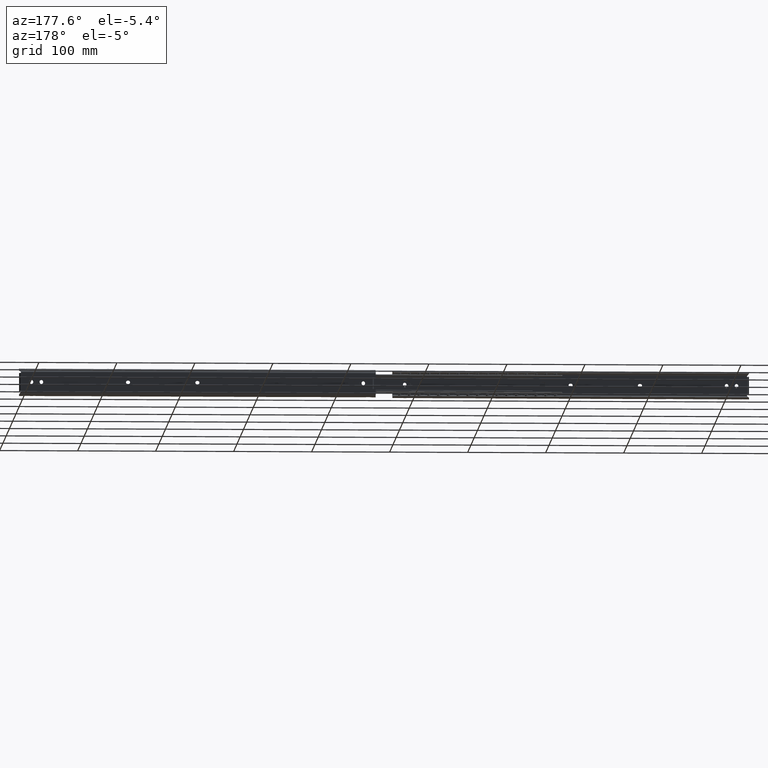
[diagram: clean part render]
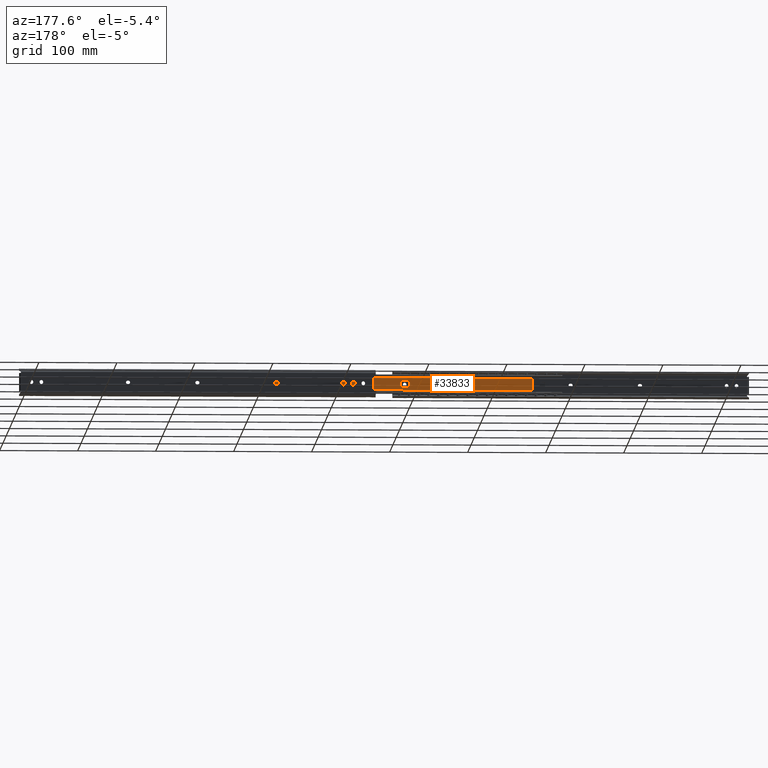
[diagram: same view with one face highlighted and labeled with its STEP entity id]
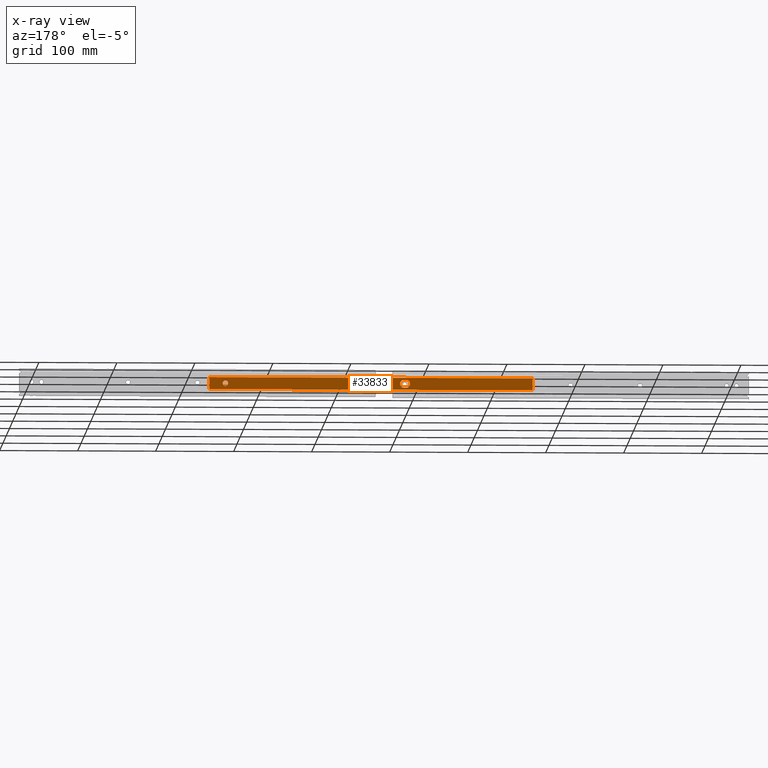
[diagram: x-ray of the same camera — body ghosted, the highlighted face saturated]
A machine part, auxiliary view. The second image highlights one B-rep face of the part: STEP entity #33833.
The next image is the same camera in x-ray: the body ghosted, the highlighted face saturated — about 0% of this face is hidden behind the body in this view.
In plain terms, the highlighted face is a freeform B-spline surface patch.
Its self-contained STEP definition (entity closure, byte-faithful):
#32329=CARTESIAN_POINT('',(-261.124466657732630,-7.100000000000000,-0.413119821344282));
#32330=VERTEX_POINT('',#32329);
#32331=CARTESIAN_POINT('',(-264.600000000000020,-7.100000000000001,3.500000000000000));
#32332=VERTEX_POINT('',#32331);
#32333=CARTESIAN_POINT('',(-261.124466657732570,-7.100000000000000,-0.413119821344282));
#32334=CARTESIAN_POINT('',(-261.100000000000080,-7.100000000000001,-0.207284418827796));
#32335=CARTESIAN_POINT('',(-261.100000000000020,-7.100000000000001,0.0));
#32336=CARTESIAN_POINT('',(-261.100000000000080,-7.100000000000001,3.500000000000000));
#32337=CARTESIAN_POINT('',(-264.600000000000020,-7.100000000000001,3.500000000000000));
#32345=(BOUNDED_CURVE()B_SPLINE_CURVE(2,(#32333,#32334,#32335,#32336,#32337),.UNSPECIFIED.,.F.,.U.)B_SPLINE_CURVE_WITH_KNOTS((3,2,3),(0.229562473511207,0.250000000000000,0.500000000000000),.UNSPECIFIED.)CURVE()GEOMETRIC_REPRESENTATION_ITEM()RATIONAL_B_SPLINE_CURVE((0.956026754179188,0.976055948328449,1.0,0.707106781186547,1.0))REPRESENTATION_ITEM(''));
#32346=EDGE_CURVE('',#32330,#32332,#32345,.T.);
#32387=CARTESIAN_POINT('',(-268.093471794417720,-7.100000000000001,0.213669889333308));
#32388=VERTEX_POINT('',#32387);
#32394=CARTESIAN_POINT('',(-264.600000000000020,-7.100000000000001,3.500000000000000));
#32395=CARTESIAN_POINT('',(-267.892471232354520,-7.099999999999999,3.500000000000000));
#32396=CARTESIAN_POINT('',(-268.093471794417720,-7.100000000000001,0.213669889333308));
#32404=(BOUNDED_CURVE()B_SPLINE_CURVE(2,(#32394,#32395,#32396),.UNSPECIFIED.,.F.,.U.)B_SPLINE_CURVE_WITH_KNOTS((3,3),(0.500000000000000,0.739332962147008),.UNSPECIFIED.)CURVE()GEOMETRIC_REPRESENTATION_ITEM()RATIONAL_B_SPLINE_CURVE((1.0,0.719603993394419,0.976072041469683))REPRESENTATION_ITEM(''));
#32405=EDGE_CURVE('',#32332,#32388,#32404,.T.);
#32428=CARTESIAN_POINT('',(-264.600000000000020,-7.100000000000001,-3.500000000000000));
#32429=VERTEX_POINT('',#32428);
#32430=CARTESIAN_POINT('',(-264.600000000000020,-7.100000000000001,-3.500000000000000));
#32431=CARTESIAN_POINT('',(-261.491389159252490,-7.100000000000001,-3.500000000000000));
#32432=CARTESIAN_POINT('',(-261.124466657732570,-7.100000000000000,-0.413119821344282));
#32440=(BOUNDED_CURVE()B_SPLINE_CURVE(2,(#32430,#32431,#32432),.UNSPECIFIED.,.F.,.U.)B_SPLINE_CURVE_WITH_KNOTS((3,3),(0.0,0.229562473511207),.UNSPECIFIED.)CURVE()GEOMETRIC_REPRESENTATION_ITEM()RATIONAL_B_SPLINE_CURVE((1.0,0.731050832858099,0.956026754179188))REPRESENTATION_ITEM(''));
#32441=EDGE_CURVE('',#32429,#32330,#32440,.T.);
#32443=CARTESIAN_POINT('',(-268.093471794417670,-7.100000000000001,0.213669889333308));
#32444=CARTESIAN_POINT('',(-268.100000000000020,-7.100000000000001,0.106934672509065));
#32445=CARTESIAN_POINT('',(-268.100000000000020,-7.100000000000001,0.0));
#32446=CARTESIAN_POINT('',(-268.100000000000020,-7.100000000000001,-3.500000000000000));
#32447=CARTESIAN_POINT('',(-264.600000000000020,-7.100000000000001,-3.500000000000000));
#32455=(BOUNDED_CURVE()B_SPLINE_CURVE(2,(#32443,#32444,#32445,#32446,#32447),.UNSPECIFIED.,.F.,.U.)B_SPLINE_CURVE_WITH_KNOTS((3,2,3),(0.739332962147008,0.750000000000000,1.0),.UNSPECIFIED.)CURVE()GEOMETRIC_REPRESENTATION_ITEM()RATIONAL_B_SPLINE_CURVE((0.976072041469684,0.987502787792129,1.0,0.707106781186547,1.0))REPRESENTATION_ITEM(''));
#32456=EDGE_CURVE('',#32388,#32429,#32455,.T.);
#33209=CARTESIAN_POINT('',(-243.800000000000010,-7.100000000000001,-7.687500000000000));
#33210=VERTEX_POINT('',#33209);
#33224=CARTESIAN_POINT('',(-243.800000000000010,-7.100000000000001,7.687499999999799));
#33225=VERTEX_POINT('',#33224);
#33226=CARTESIAN_POINT('',(-243.800000000000010,-7.100000000000001,7.687499999999799));
#33227=CARTESIAN_POINT('',(-243.800000000000010,-7.100000000000001,-7.687500000000000));
#33228=QUASI_UNIFORM_CURVE('',1,(#33226,#33227),.UNSPECIFIED.,.F.,.U.);
#33229=EDGE_CURVE('',#33225,#33210,#33228,.T.);
#33261=CARTESIAN_POINT('',(-439.600000000000020,-7.100000000000001,-5.0));
#33262=VERTEX_POINT('',#33261);
#33268=CARTESIAN_POINT('',(-442.600000000000020,-7.100000000000001,-5.0));
#33269=VERTEX_POINT('',#33268);
#33270=CARTESIAN_POINT('',(-442.600000000000020,-7.100000000000001,-5.0));
#33271=CARTESIAN_POINT('',(-439.600000000000020,-7.100000000000001,-5.0));
#33272=QUASI_UNIFORM_CURVE('',1,(#33270,#33271),.UNSPECIFIED.,.F.,.U.);
#33273=EDGE_CURVE('',#33269,#33262,#33272,.T.);
#33319=CARTESIAN_POINT('',(-442.600000000000020,-7.100000000000001,4.999999999999800));
#33320=VERTEX_POINT('',#33319);
#33321=CARTESIAN_POINT('',(-442.600000000000020,-7.100000000000001,5.0));
#33322=CARTESIAN_POINT('',(-447.600000000000020,-7.100000000000001,5.000000000000001));
#33323=CARTESIAN_POINT('',(-447.600000000000020,-7.100000000000001,0.0));
#33324=CARTESIAN_POINT('',(-447.600000000000020,-7.100000000000001,-5.000000000000001));
#33325=CARTESIAN_POINT('',(-442.600000000000020,-7.100000000000001,-5.0));
#33333=(BOUNDED_CURVE()B_SPLINE_CURVE(2,(#33321,#33322,#33323,#33324,#33325),.UNSPECIFIED.,.F.,.U.)B_SPLINE_CURVE_WITH_KNOTS((3,2,3),(0.0,0.500000000000000,1.0),.UNSPECIFIED.)CURVE()GEOMETRIC_REPRESENTATION_ITEM()RATIONAL_B_SPLINE_CURVE((1.0,0.707106781186548,1.0,0.707106781186548,1.0))REPRESENTATION_ITEM(''));
#33334=EDGE_CURVE('',#33320,#33269,#33333,.T.);
#33357=CARTESIAN_POINT('',(-439.600000000000020,-7.100000000000001,4.999999999999800));
#33358=VERTEX_POINT('',#33357);
#33359=CARTESIAN_POINT('',(-439.600000000000020,-7.100000000000001,4.999999999999800));
#33360=CARTESIAN_POINT('',(-442.600000000000020,-7.100000000000001,4.999999999999800));
#33361=QUASI_UNIFORM_CURVE('',1,(#33359,#33360),.UNSPECIFIED.,.F.,.U.);
#33362=EDGE_CURVE('',#33358,#33320,#33361,.T.);
#33406=CARTESIAN_POINT('',(-439.600000000000020,-7.100000000000001,-5.0));
#33407=CARTESIAN_POINT('',(-434.599999999999910,-7.100000000000001,-5.000000000000001));
#33408=CARTESIAN_POINT('',(-434.600000000000020,-7.100000000000001,0.0));
#33409=CARTESIAN_POINT('',(-434.599999999999910,-7.100000000000001,5.000000000000001));
#33410=CARTESIAN_POINT('',(-439.600000000000020,-7.100000000000001,5.0));
#33418=(BOUNDED_CURVE()B_SPLINE_CURVE(2,(#33406,#33407,#33408,#33409,#33410),.UNSPECIFIED.,.F.,.U.)B_SPLINE_CURVE_WITH_KNOTS((3,2,3),(0.0,0.500000000000000,1.0),.UNSPECIFIED.)CURVE()GEOMETRIC_REPRESENTATION_ITEM()RATIONAL_B_SPLINE_CURVE((1.0,0.707106781186548,1.0,0.707106781186548,1.0))REPRESENTATION_ITEM(''));
#33419=EDGE_CURVE('',#33262,#33358,#33418,.T.);
#33462=CARTESIAN_POINT('',(-493.399999999999980,-7.100000000000001,5.0));
#33463=VERTEX_POINT('',#33462);
#33469=CARTESIAN_POINT('',(-493.399999999999980,-7.100000000000001,-5.0));
#33470=VERTEX_POINT('',#33469);
#33471=CARTESIAN_POINT('',(-493.399999999999980,-7.100000000000001,-5.0));
#33472=CARTESIAN_POINT('',(-488.399999999999980,-7.100000000000001,-5.000000000000001));
#33473=CARTESIAN_POINT('',(-488.399999999999980,-7.100000000000001,0.0));
#33474=CARTESIAN_POINT('',(-488.399999999999980,-7.100000000000001,5.000000000000001));
#33475=CARTESIAN_POINT('',(-493.399999999999980,-7.100000000000001,5.0));
#33483=(BOUNDED_CURVE()B_SPLINE_CURVE(2,(#33471,#33472,#33473,#33474,#33475),.UNSPECIFIED.,.F.,.U.)B_SPLINE_CURVE_WITH_KNOTS((3,2,3),(0.0,0.500000000000000,1.0),.UNSPECIFIED.)CURVE()GEOMETRIC_REPRESENTATION_ITEM()RATIONAL_B_SPLINE_CURVE((1.0,0.707106781186548,1.0,0.707106781186548,1.0))REPRESENTATION_ITEM(''));
#33484=EDGE_CURVE('',#33470,#33463,#33483,.T.);
#33507=CARTESIAN_POINT('',(-496.399999999999980,-7.100000000000001,-5.0));
#33508=VERTEX_POINT('',#33507);
#33509=CARTESIAN_POINT('',(-496.399999999999980,-7.100000000000001,-5.0));
#33510=CARTESIAN_POINT('',(-493.399999999999980,-7.100000000000001,-5.0));
#33511=QUASI_UNIFORM_CURVE('',1,(#33509,#33510),.UNSPECIFIED.,.F.,.U.);
#33512=EDGE_CURVE('',#33508,#33470,#33511,.T.);
#33558=CARTESIAN_POINT('',(-496.399999999999980,-7.100000000000001,5.0));
#33559=VERTEX_POINT('',#33558);
#33560=CARTESIAN_POINT('',(-496.399999999999980,-7.100000000000001,5.0));
#33561=CARTESIAN_POINT('',(-501.400000000000090,-7.100000000000001,5.000000000000001));
#33562=CARTESIAN_POINT('',(-501.399999999999980,-7.100000000000001,0.0));
#33563=CARTESIAN_POINT('',(-501.400000000000090,-7.100000000000001,-5.000000000000001));
#33564=CARTESIAN_POINT('',(-496.399999999999980,-7.100000000000001,-5.0));
#33572=(BOUNDED_CURVE()B_SPLINE_CURVE(2,(#33560,#33561,#33562,#33563,#33564),.UNSPECIFIED.,.F.,.U.)B_SPLINE_CURVE_WITH_KNOTS((3,2,3),(0.0,0.500000000000000,1.0),.UNSPECIFIED.)CURVE()GEOMETRIC_REPRESENTATION_ITEM()RATIONAL_B_SPLINE_CURVE((1.0,0.707106781186548,1.0,0.707106781186548,1.0))REPRESENTATION_ITEM(''));
#33573=EDGE_CURVE('',#33559,#33508,#33572,.T.);
#33594=CARTESIAN_POINT('',(-493.399999999999980,-7.100000000000001,5.0));
#33595=CARTESIAN_POINT('',(-496.399999999999980,-7.100000000000001,5.0));
#33596=QUASI_UNIFORM_CURVE('',1,(#33594,#33595),.UNSPECIFIED.,.F.,.U.);
#33597=EDGE_CURVE('',#33463,#33559,#33596,.T.);
#33617=CARTESIAN_POINT('',(-658.399999999999980,-7.100000000000001,7.687499999999799));
#33618=VERTEX_POINT('',#33617);
#33632=CARTESIAN_POINT('',(-658.399999999999980,-7.100000000000001,-7.687500000000000));
#33633=VERTEX_POINT('',#33632);
#33634=CARTESIAN_POINT('',(-658.399999999999980,-7.100000000000001,-7.687500000000000));
#33635=CARTESIAN_POINT('',(-658.399999999999980,-7.100000000000001,7.687499999999799));
#33636=QUASI_UNIFORM_CURVE('',1,(#33634,#33635),.UNSPECIFIED.,.F.,.U.);
#33637=EDGE_CURVE('',#33633,#33618,#33636,.T.);
#33791=CARTESIAN_POINT('',(-243.800000000000010,-7.100000000000001,7.687499999999799));
#33792=CARTESIAN_POINT('',(-658.399999999999980,-7.100000000000001,7.687499999999799));
#33793=QUASI_UNIFORM_CURVE('',1,(#33791,#33792),.UNSPECIFIED.,.F.,.U.);
#33794=EDGE_CURVE('',#33225,#33618,#33793,.T.);
#33800=CARTESIAN_POINT('',(-679.109296440201890,-7.100000000000001,8.455481220200056));
#33801=CARTESIAN_POINT('',(-679.109296440201890,-7.100000000000001,-8.455481632589891));
#33802=CARTESIAN_POINT('',(-223.090718387049610,-7.100000000000001,8.455481220200056));
#33803=CARTESIAN_POINT('',(-223.090718387049610,-7.100000000000001,-8.455481632589891));
#33804=B_SPLINE_SURFACE_WITH_KNOTS('',1,1,((#33800,#33802),(#33801,#33803)),.UNSPECIFIED.,.F.,.F.,.U.,(2,2),(2,2),(0.0,16.910962852789950),(0.0,456.018578053152280),.UNSPECIFIED.);
#33805=ORIENTED_EDGE('',*,*,#33794,.F.);
#33806=ORIENTED_EDGE('',*,*,#33229,.T.);
#33807=CARTESIAN_POINT('',(-243.800000000000010,-7.100000000000001,-7.687500000000000));
#33808=CARTESIAN_POINT('',(-658.399999999999980,-7.100000000000001,-7.687500000000000));
#33809=QUASI_UNIFORM_CURVE('',1,(#33807,#33808),.UNSPECIFIED.,.F.,.U.);
#33810=EDGE_CURVE('',#33210,#33633,#33809,.T.);
#33811=ORIENTED_EDGE('',*,*,#33810,.T.);
#33812=ORIENTED_EDGE('',*,*,#33637,.T.);
#33813=EDGE_LOOP('',(#33805,#33806,#33811,#33812));
#33814=FACE_OUTER_BOUND('',#33813,.T.);
#33815=ORIENTED_EDGE('',*,*,#33484,.T.);
#33816=ORIENTED_EDGE('',*,*,#33597,.T.);
#33817=ORIENTED_EDGE('',*,*,#33573,.T.);
#33818=ORIENTED_EDGE('',*,*,#33512,.T.);
#33819=EDGE_LOOP('',(#33815,#33816,#33817,#33818));
#33820=FACE_BOUND('',#33819,.T.);
#33821=ORIENTED_EDGE('',*,*,#33273,.T.);
#33822=ORIENTED_EDGE('',*,*,#33419,.T.);
#33823=ORIENTED_EDGE('',*,*,#33362,.T.);
#33824=ORIENTED_EDGE('',*,*,#33334,.T.);
#33825=EDGE_LOOP('',(#33821,#33822,#33823,#33824));
#33826=FACE_BOUND('',#33825,.T.);
#33827=ORIENTED_EDGE('',*,*,#32405,.T.);
#33828=ORIENTED_EDGE('',*,*,#32456,.T.);
#33829=ORIENTED_EDGE('',*,*,#32441,.T.);
#33830=ORIENTED_EDGE('',*,*,#32346,.T.);
#33831=EDGE_LOOP('',(#33827,#33828,#33829,#33830));
#33832=FACE_BOUND('',#33831,.T.);
#33833=ADVANCED_FACE('',(#33814,#33820,#33826,#33832),#33804,.F.);